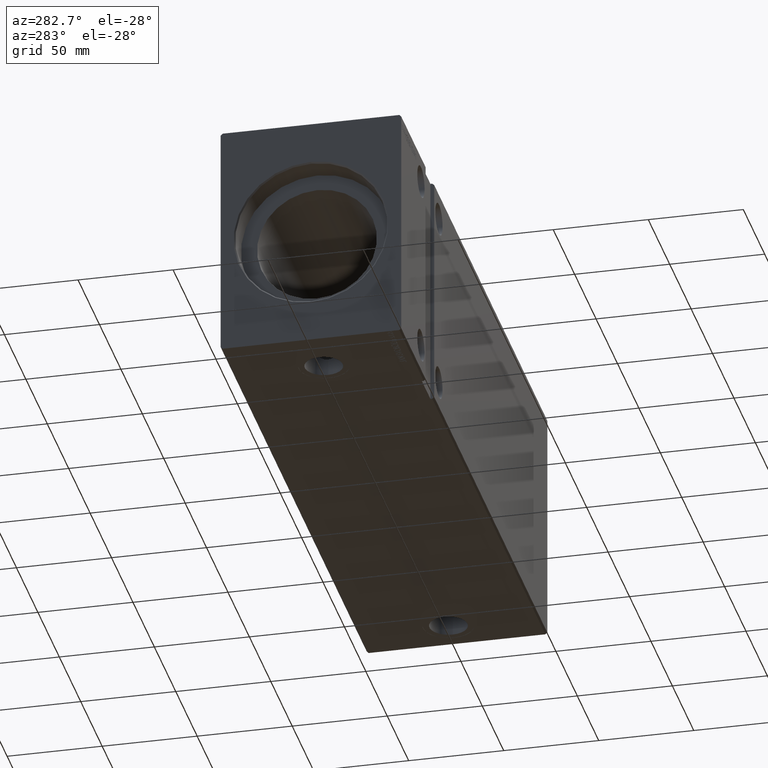
[diagram: clean part render]
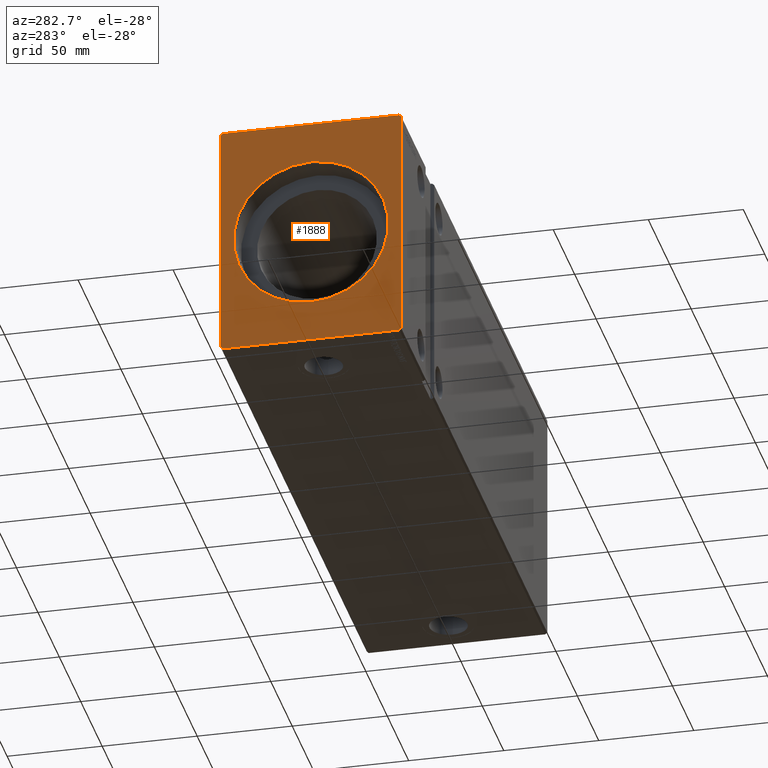
[diagram: same view with one face highlighted and labeled with its STEP entity id]
A machine part, auxiliary view. The second image highlights one B-rep face of the part: STEP entity #1888.
In plain terms, the highlighted planar face has unit normal (1, 0, 0).
Its self-contained STEP definition (entity closure, byte-faithful):
#61 = CIRCLE ( 'NONE', #28692, 40.69999999999990337 ) ;
#921 = CARTESIAN_POINT ( 'NONE',  ( 0.000000000000000000, -46.50000000000000000, -62.50000000000001421 ) ) ;
#1888 = ADVANCED_FACE ( 'NONE', ( #40871, #23913 ), #39883, .F. ) ;
#2101 = DIRECTION ( 'NONE',  ( 0.000000000000000000, -0.7071067811865474617, -0.7071067811865474617 ) ) ;
#3032 = CARTESIAN_POINT ( 'NONE',  ( 0.000000000000000000, -47.50000000000001421, 61.49999999999997868 ) ) ;
#3033 = DIRECTION ( 'NONE',  ( 0.000000000000000000, -1.000000000000000000, -7.461176240760460157E-17 ) ) ;
#3642 = LINE ( 'NONE', #33211, #40278 ) ;
#4110 = CARTESIAN_POINT ( 'NONE',  ( 0.000000000000000000, -47.49999999999999289, -61.50000000000001421 ) ) ;
#5723 = DIRECTION ( 'NONE',  ( 0.000000000000000000, 0.7071067811865574537, 0.7071067811865376918 ) ) ;
#6080 = VERTEX_POINT ( 'NONE', #7987 ) ;
#6413 = ORIENTED_EDGE ( 'NONE', *, *, #7543, .F. ) ;
#6823 = DIRECTION ( 'NONE',  ( 0.000000000000000000, 0.000000000000000000, -1.000000000000000000 ) ) ;
#7389 = ORIENTED_EDGE ( 'NONE', *, *, #34582, .F. ) ;
#7501 = VERTEX_POINT ( 'NONE', #31914 ) ;
#7512 = LINE ( 'NONE', #921, #22407 ) ;
#7543 = EDGE_CURVE ( 'NONE', #17111, #13231, #9784, .T. ) ;
#7894 = EDGE_CURVE ( 'NONE', #36375, #17111, #7512, .T. ) ;
#7987 = CARTESIAN_POINT ( 'NONE',  ( 0.000000000000000000, -46.50000000000001421, 62.49999999999997868 ) ) ;
#8007 = ORIENTED_EDGE ( 'NONE', *, *, #32330, .T. ) ;
#8842 = ORIENTED_EDGE ( 'NONE', *, *, #7894, .F. ) ;
#9018 = CARTESIAN_POINT ( 'NONE',  ( 0.000000000000000000, 46.50000000000000000, -62.50000000000000000 ) ) ;
#9143 = DIRECTION ( 'NONE',  ( 0.000000000000000000, 1.692413147294445970E-16, -1.000000000000000000 ) ) ;
#9422 = LINE ( 'NONE', #18593, #29499 ) ;
#9784 = LINE ( 'NONE', #15739, #25131 ) ;
#10946 = ORIENTED_EDGE ( 'NONE', *, *, #25428, .F. ) ;
#11576 = VERTEX_POINT ( 'NONE', #27082 ) ;
#11721 = CARTESIAN_POINT ( 'NONE',  ( 0.000000000000000000, 0.000000000000000000, 0.000000000000000000 ) ) ;
#11806 = ORIENTED_EDGE ( 'NONE', *, *, #22655, .F. ) ;
#12221 = CARTESIAN_POINT ( 'NONE',  ( 0.000000000000000000, 0.000000000000000000, 40.69999999999990337 ) ) ;
#13095 = VECTOR ( 'NONE', #9143, 1000.000000000000000 ) ;
#13231 = VERTEX_POINT ( 'NONE', #31873 ) ;
#14800 = AXIS2_PLACEMENT_3D ( 'NONE', #11721, #18538, #31289 ) ;
#15365 = VERTEX_POINT ( 'NONE', #20978 ) ;
#15470 = CARTESIAN_POINT ( 'NONE',  ( 0.000000000000000000, 47.50000000000000000, 61.49999999999998579 ) ) ;
#15739 = CARTESIAN_POINT ( 'NONE',  ( 0.000000000000000000, 46.50000000000000000, -62.50000000000000000 ) ) ;
#16842 = EDGE_LOOP ( 'NONE', ( #11806, #27404, #6413, #8842, #42135, #30906, #7389, #10946 ) ) ;
#17111 = VERTEX_POINT ( 'NONE', #9018 ) ;
#17309 = ORIENTED_EDGE ( 'NONE', *, *, #21664, .T. ) ;
#17866 = CIRCLE ( 'NONE', #30778, 40.69999999999990337 ) ;
#18296 = LINE ( 'NONE', #31273, #29366 ) ;
#18538 = DIRECTION ( 'NONE',  ( 1.000000000000000000, 0.000000000000000000, 0.000000000000000000 ) ) ;
#18593 = CARTESIAN_POINT ( 'NONE',  ( 0.000000000000000000, 46.50000000000000000, 62.49999999999998579 ) ) ;
#19980 = DIRECTION ( 'NONE',  ( 0.000000000000000000, -1.128275431529630729E-16, 1.000000000000000000 ) ) ;
#20502 = DIRECTION ( 'NONE',  ( 0.000000000000000000, 1.000000000000000000, 1.492235248152092278E-16 ) ) ;
#20978 = CARTESIAN_POINT ( 'NONE',  ( 0.000000000000000000, 46.50000000000000000, 62.49999999999998579 ) ) ;
#21664 = EDGE_CURVE ( 'NONE', #23330, #7501, #17866, .T. ) ;
#22407 = VECTOR ( 'NONE', #20502, 1000.000000000000000 ) ;
#22643 = DIRECTION ( 'NONE',  ( 0.000000000000000000, 0.000000000000000000, -1.000000000000000000 ) ) ;
#22655 = EDGE_CURVE ( 'NONE', #23117, #15365, #3642, .T. ) ;
#22947 = CARTESIAN_POINT ( 'NONE',  ( 0.000000000000000000, 47.50000000000001421, -61.50000000000001421 ) ) ;
#23117 = VERTEX_POINT ( 'NONE', #15470 ) ;
#23330 = VERTEX_POINT ( 'NONE', #12221 ) ;
#23913 = FACE_OUTER_BOUND ( 'NONE', #16842, .T. ) ;
#25131 = VECTOR ( 'NONE', #5723, 999.9999999999998863 ) ;
#25428 = EDGE_CURVE ( 'NONE', #15365, #6080, #9422, .T. ) ;
#25831 = CARTESIAN_POINT ( 'NONE',  ( 0.000000000000000000, 0.000000000000000000, 0.000000000000000000 ) ) ;
#26617 = DIRECTION ( 'NONE',  ( 1.000000000000000000, 0.000000000000000000, 0.000000000000000000 ) ) ;
#26716 = EDGE_LOOP ( 'NONE', ( #17309, #8007 ) ) ;
#27082 = CARTESIAN_POINT ( 'NONE',  ( 0.000000000000000000, -47.49999999999999289, -61.50000000000001421 ) ) ;
#27404 = ORIENTED_EDGE ( 'NONE', *, *, #41864, .F. ) ;
#28584 = VECTOR ( 'NONE', #19980, 1000.000000000000000 ) ;
#28687 = VECTOR ( 'NONE', #32883, 1000.000000000000114 ) ;
#28692 = AXIS2_PLACEMENT_3D ( 'NONE', #25831, #38806, #22643 ) ;
#29366 = VECTOR ( 'NONE', #2101, 1000.000000000000114 ) ;
#29499 = VECTOR ( 'NONE', #3033, 1000.000000000000000 ) ;
#30778 = AXIS2_PLACEMENT_3D ( 'NONE', #39605, #26617, #6823 ) ;
#30906 = ORIENTED_EDGE ( 'NONE', *, *, #36393, .F. ) ;
#31273 = CARTESIAN_POINT ( 'NONE',  ( 0.000000000000000000, -46.50000000000001421, 62.49999999999997868 ) ) ;
#31289 = DIRECTION ( 'NONE',  ( 0.000000000000000000, 0.000000000000000000, -1.000000000000000000 ) ) ;
#31873 = CARTESIAN_POINT ( 'NONE',  ( 0.000000000000000000, 47.50000000000001421, -61.50000000000001421 ) ) ;
#31914 = CARTESIAN_POINT ( 'NONE',  ( 0.000000000000000000, 4.984312472529715481E-15, -40.69999999999990337 ) ) ;
#32330 = EDGE_CURVE ( 'NONE', #7501, #23330, #61, .T. ) ;
#32550 = CARTESIAN_POINT ( 'NONE',  ( 0.000000000000000000, -46.50000000000000000, -62.50000000000001421 ) ) ;
#32883 = DIRECTION ( 'NONE',  ( 0.000000000000000000, 0.7071067811865451302, -0.7071067811865500152 ) ) ;
#33211 = CARTESIAN_POINT ( 'NONE',  ( 0.000000000000000000, 47.50000000000000000, 61.49999999999998579 ) ) ;
#34582 = EDGE_CURVE ( 'NONE', #6080, #40413, #18296, .T. ) ;
#35094 = LINE ( 'NONE', #38295, #13095 ) ;
#36375 = VERTEX_POINT ( 'NONE', #32550 ) ;
#36393 = EDGE_CURVE ( 'NONE', #40413, #11576, #35094, .T. ) ;
#36466 = LINE ( 'NONE', #4110, #28687 ) ;
#37169 = EDGE_CURVE ( 'NONE', #11576, #36375, #36466, .T. ) ;
#38295 = CARTESIAN_POINT ( 'NONE',  ( 0.000000000000000000, -47.50000000000001421, 61.49999999999997868 ) ) ;
#38806 = DIRECTION ( 'NONE',  ( 1.000000000000000000, 0.000000000000000000, 0.000000000000000000 ) ) ;
#39123 = LINE ( 'NONE', #22947, #28584 ) ;
#39605 = CARTESIAN_POINT ( 'NONE',  ( 0.000000000000000000, 0.000000000000000000, 0.000000000000000000 ) ) ;
#39883 = PLANE ( 'NONE',  #14800 ) ;
#40212 = DIRECTION ( 'NONE',  ( 0.000000000000000000, -0.7071067811865474617, 0.7071067811865474617 ) ) ;
#40278 = VECTOR ( 'NONE', #40212, 1000.000000000000114 ) ;
#40413 = VERTEX_POINT ( 'NONE', #3032 ) ;
#40871 = FACE_BOUND ( 'NONE', #26716, .T. ) ;
#41864 = EDGE_CURVE ( 'NONE', #13231, #23117, #39123, .T. ) ;
#42135 = ORIENTED_EDGE ( 'NONE', *, *, #37169, .F. ) ;